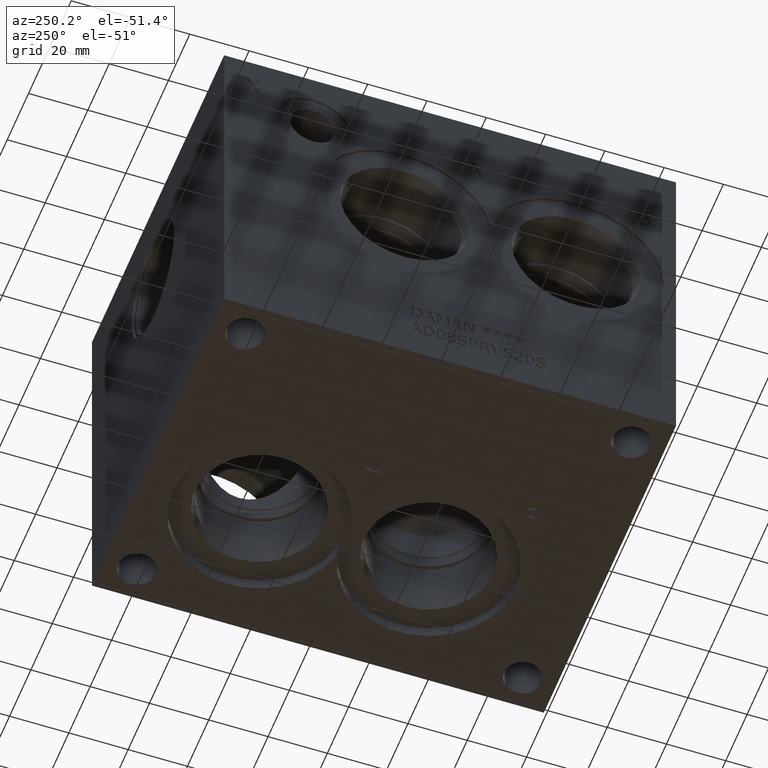
[diagram: clean part render]
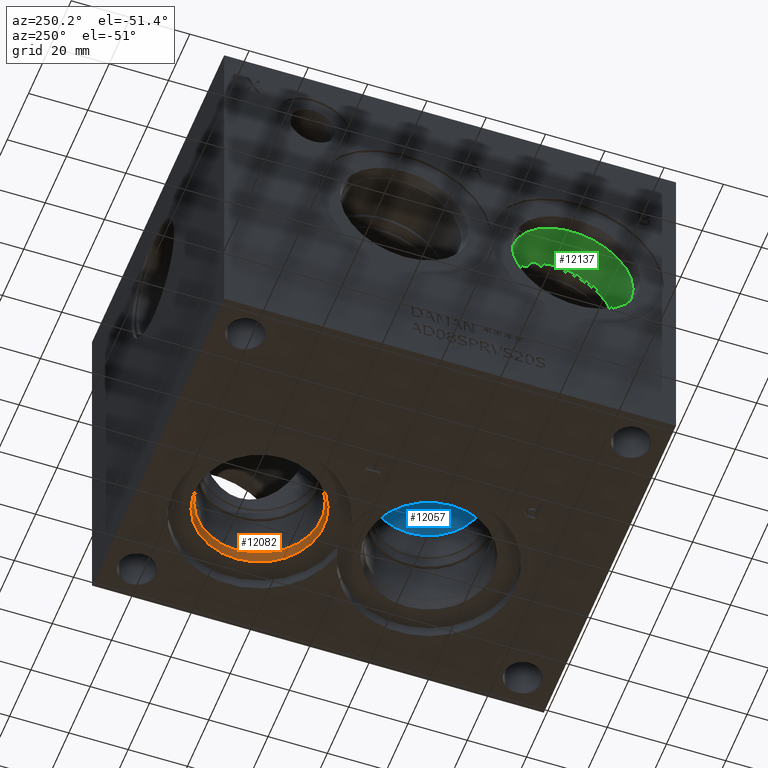
[diagram: same view with three faces highlighted in distinct colors, each labeled with its STEP entity id]
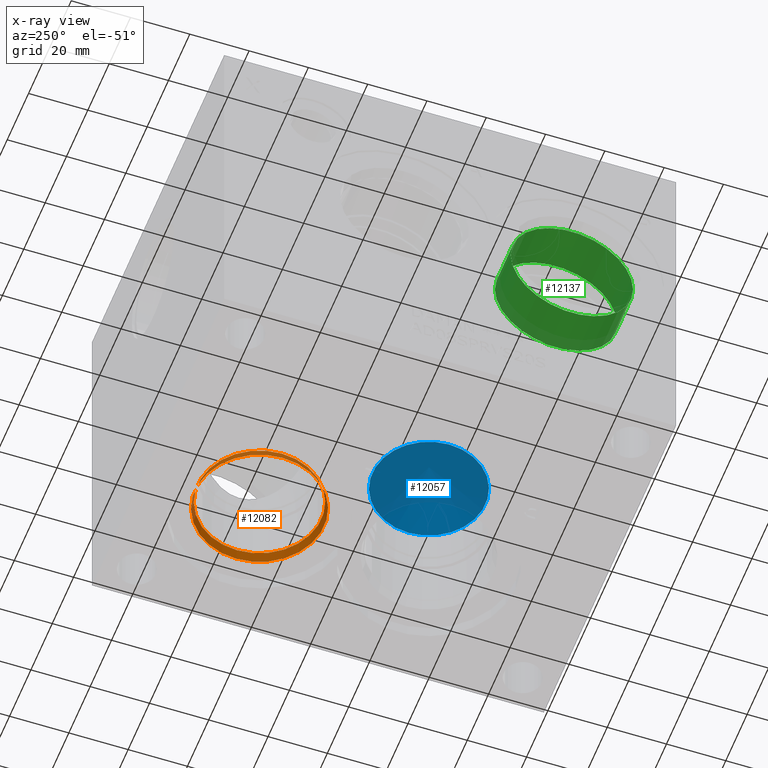
[diagram: x-ray of the same camera — body ghosted, the three highlighted faces saturated]
A machine part, auxiliary view with three faces highlighted in distinct colors.
The next image is the same camera in x-ray (body ghosted, the three faces saturated) — at least one of them is partly hidden behind the body in this view.
Their STEP definitions:

[orange] entity #12082 — the highlighted conical surface has half-angle 15 deg.
#102=CONICAL_SURFACE('',#12618,21.31695,0.261799389532322);
#198=CIRCLE('',#12616,21.7551);
#199=CIRCLE('',#12617,21.7551);
#200=CIRCLE('',#12619,20.8788);
#201=CIRCLE('',#12620,20.8788);
#1345=FACE_OUTER_BOUND('',#2034,.T.);
#2034=EDGE_LOOP('',(#10262,#10263,#10264,#10265,#10266,#10267));
#3182=LINE('',#20557,#4264);
#4264=VECTOR('',#14715,21.31695);
#5638=VERTEX_POINT('',#20551);
#5639=VERTEX_POINT('',#20552);
#5640=VERTEX_POINT('',#20556);
#5641=VERTEX_POINT('',#20558);
#7245=EDGE_CURVE('',#5638,#5639,#198,.T.);
#7246=EDGE_CURVE('',#5639,#5638,#199,.T.);
#7247=EDGE_CURVE('',#5639,#5640,#3182,.T.);
#7248=EDGE_CURVE('',#5640,#5641,#200,.T.);
#7249=EDGE_CURVE('',#5641,#5640,#201,.T.);
#10262=ORIENTED_EDGE('',*,*,#7245,.F.);
#10263=ORIENTED_EDGE('',*,*,#7246,.F.);
#10264=ORIENTED_EDGE('',*,*,#7247,.T.);
#10265=ORIENTED_EDGE('',*,*,#7248,.T.);
#10266=ORIENTED_EDGE('',*,*,#7249,.T.);
#10267=ORIENTED_EDGE('',*,*,#7247,.F.);
#12082=ADVANCED_FACE('',(#1345),#102,.F.);
#12616=AXIS2_PLACEMENT_3D('',#20553,#14709,#14710);
#12617=AXIS2_PLACEMENT_3D('',#20554,#14711,#14712);
#12618=AXIS2_PLACEMENT_3D('',#20555,#14713,#14714);
#12619=AXIS2_PLACEMENT_3D('',#20559,#14716,#14717);
#12620=AXIS2_PLACEMENT_3D('',#20560,#14718,#14719);
#14709=DIRECTION('center_axis',(0.,0.,1.));
#14710=DIRECTION('ref_axis',(1.,0.,0.));
#14711=DIRECTION('center_axis',(0.,0.,1.));
#14712=DIRECTION('ref_axis',(1.,0.,0.));
#14713=DIRECTION('center_axis',(0.,0.,-1.));
#14714=DIRECTION('ref_axis',(1.,0.,0.));
#14715=DIRECTION('',(0.258819046776637,3.16961917193377E-17,0.96592582584049));
#14716=DIRECTION('center_axis',(0.,0.,1.));
#14717=DIRECTION('ref_axis',(1.,0.,0.));
#14718=DIRECTION('center_axis',(0.,0.,1.));
#14719=DIRECTION('ref_axis',(1.,0.,0.));
#20551=CARTESIAN_POINT('',(101.1301,111.9124,4.064));
#20552=CARTESIAN_POINT('',(57.6199,111.9124,4.064));
#20553=CARTESIAN_POINT('Origin',(79.375,111.9124,4.064));
#20554=CARTESIAN_POINT('Origin',(79.375,111.9124,4.064));
#20555=CARTESIAN_POINT('Origin',(79.375,111.9124,5.69919805));
#20556=CARTESIAN_POINT('',(58.4962,111.9124,7.3343961));
#20557=CARTESIAN_POINT('',(58.05805,111.9124,5.69919805));
#20558=CARTESIAN_POINT('',(100.2538,111.9124,7.3343961));
#20559=CARTESIAN_POINT('Origin',(79.375,111.9124,7.3343961));
#20560=CARTESIAN_POINT('Origin',(79.375,111.9124,7.3343961));

[blue] entity #12057 — the highlighted conical surface has half-angle 60 deg.
#91=CONICAL_SURFACE('',#12558,9.525,1.0471975511966);
#166=CIRCLE('',#12559,19.05);
#167=CIRCLE('',#12560,19.05);
#1320=FACE_OUTER_BOUND('',#2005,.T.);
#2005=EDGE_LOOP('',(#10130,#10131,#10132,#10133));
#3166=LINE('',#20304,#4248);
#4248=VECTOR('',#14581,9.525);
#5592=VERTEX_POINT('',#20300);
#5593=VERTEX_POINT('',#20301);
#5594=VERTEX_POINT('',#20303);
#7179=EDGE_CURVE('',#5592,#5593,#166,.T.);
#7180=EDGE_CURVE('',#5593,#5594,#3166,.T.);
#7181=EDGE_CURVE('',#5593,#5592,#167,.T.);
#10130=ORIENTED_EDGE('',*,*,#7179,.T.);
#10131=ORIENTED_EDGE('',*,*,#7180,.T.);
#10132=ORIENTED_EDGE('',*,*,#7180,.F.);
#10133=ORIENTED_EDGE('',*,*,#7181,.T.);
#12057=ADVANCED_FACE('',(#1320),#91,.F.);
#12558=AXIS2_PLACEMENT_3D('',#20299,#14577,#14578);
#12559=AXIS2_PLACEMENT_3D('',#20302,#14579,#14580);
#12560=AXIS2_PLACEMENT_3D('',#20305,#14582,#14583);
#14577=DIRECTION('center_axis',(0.,0.,-1.));
#14578=DIRECTION('ref_axis',(1.,0.,0.));
#14579=DIRECTION('center_axis',(0.,0.,-1.));
#14580=DIRECTION('ref_axis',(1.,0.,0.));
#14581=DIRECTION('',(0.866025403784439,-1.06057523872491E-16,0.5));
#14582=DIRECTION('center_axis',(0.,0.,-1.));
#14583=DIRECTION('ref_axis',(1.,0.,0.));
#20299=CARTESIAN_POINT('Origin',(79.375,54.7624,43.8229813140312));
#20300=CARTESIAN_POINT('',(98.425,54.7624,38.32372));
#20301=CARTESIAN_POINT('',(60.325,54.7624,38.32372));
#20302=CARTESIAN_POINT('Origin',(79.375,54.7624,38.32372));
#20303=CARTESIAN_POINT('',(79.375,54.7624,49.3222426280624));
#20304=CARTESIAN_POINT('',(69.85,54.7624,43.8229813140312));
#20305=CARTESIAN_POINT('Origin',(79.375,54.7624,38.32372));

[green] entity #12137 — the highlighted cylindrical surface (bore or boss wall) has radius 20.6375 mm, axis along (-1, 0, 0).
#51=CYLINDRICAL_SURFACE('',#12754,20.6375);
#278=CIRCLE('',#12751,20.6375);
#279=CIRCLE('',#12752,20.6375);
#281=CIRCLE('',#12755,20.6375);
#1400=FACE_OUTER_BOUND('',#2100,.T.);
#2100=EDGE_LOOP('',(#10538,#10539,#10540,#10541,#10542));
#3226=LINE('',#20824,#4308);
#4308=VECTOR('',#15033,20.6375);
#5723=VERTEX_POINT('',#20815);
#5724=VERTEX_POINT('',#20816);
#5726=VERTEX_POINT('',#20822);
#7369=EDGE_CURVE('',#5723,#5724,#278,.T.);
#7370=EDGE_CURVE('',#5724,#5723,#279,.T.);
#7372=EDGE_CURVE('',#5726,#5726,#281,.T.);
#7373=EDGE_CURVE('',#5726,#5724,#3226,.T.);
#10538=ORIENTED_EDGE('',*,*,#7372,.F.);
#10539=ORIENTED_EDGE('',*,*,#7373,.T.);
#10540=ORIENTED_EDGE('',*,*,#7369,.F.);
#10541=ORIENTED_EDGE('',*,*,#7370,.F.);
#10542=ORIENTED_EDGE('',*,*,#7373,.F.);
#12137=ADVANCED_FACE('',(#1400),#51,.F.);
#12751=AXIS2_PLACEMENT_3D('',#20817,#15023,#15024);
#12752=AXIS2_PLACEMENT_3D('',#20818,#15025,#15026);
#12754=AXIS2_PLACEMENT_3D('',#20821,#15029,#15030);
#12755=AXIS2_PLACEMENT_3D('',#20823,#15031,#15032);
#15023=DIRECTION('center_axis',(-1.,0.,0.));
#15024=DIRECTION('ref_axis',(0.,1.,0.));
#15025=DIRECTION('center_axis',(-1.,0.,0.));
#15026=DIRECTION('ref_axis',(0.,1.,0.));
#15029=DIRECTION('center_axis',(-1.,0.,0.));
#15030=DIRECTION('ref_axis',(0.,1.,0.));
#15031=DIRECTION('center_axis',(1.,0.,0.));
#15032=DIRECTION('ref_axis',(0.,1.,0.));
#15033=DIRECTION('',(1.,0.,0.));
#20815=CARTESIAN_POINT('',(19.8374,53.9623,69.85));
#20816=CARTESIAN_POINT('',(19.8374,12.6873,69.85));
#20817=CARTESIAN_POINT('Origin',(19.8374,33.3248,69.85));
#20818=CARTESIAN_POINT('Origin',(19.8374,33.3248,69.85));
#20821=CARTESIAN_POINT('Origin',(9.9187,33.3248,69.85));
#20822=CARTESIAN_POINT('',(4.97099998253897,12.6873,69.85));
#20823=CARTESIAN_POINT('Origin',(4.97099998253897,33.3248,69.85));
#20824=CARTESIAN_POINT('',(9.9187,12.6873,69.85));